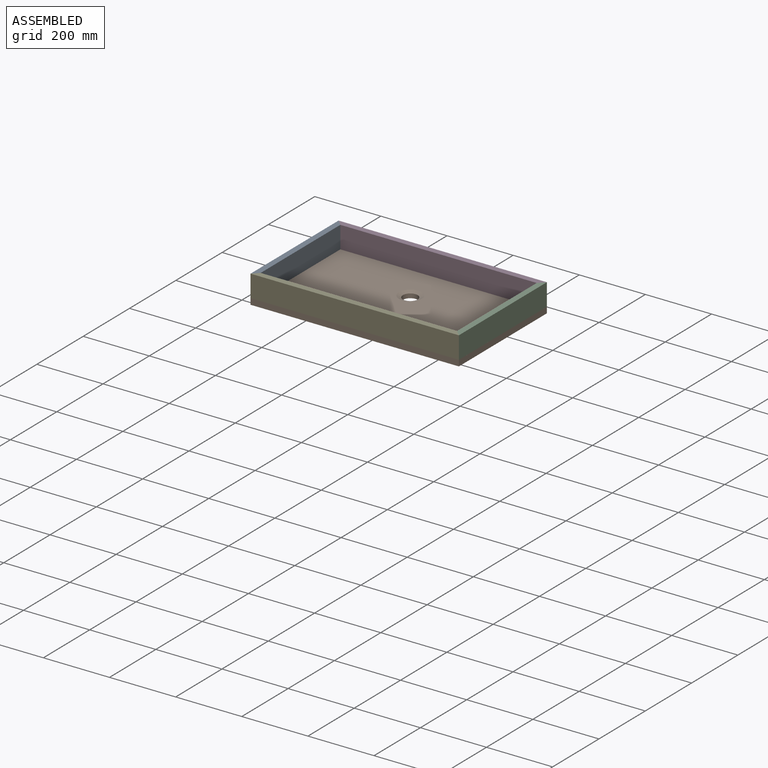
[diagram: assembled view]
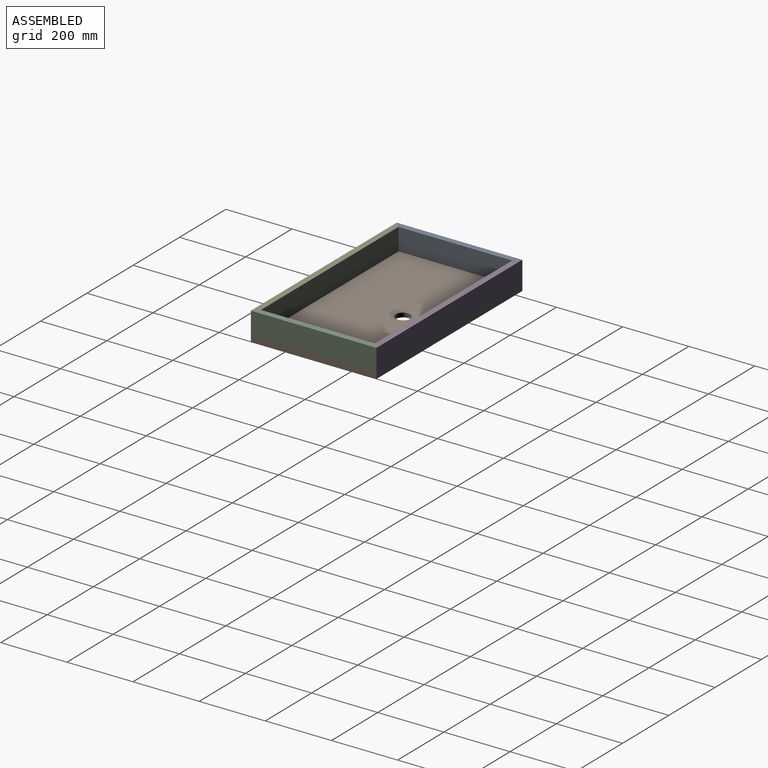
[diagram: assembled view, second angle]
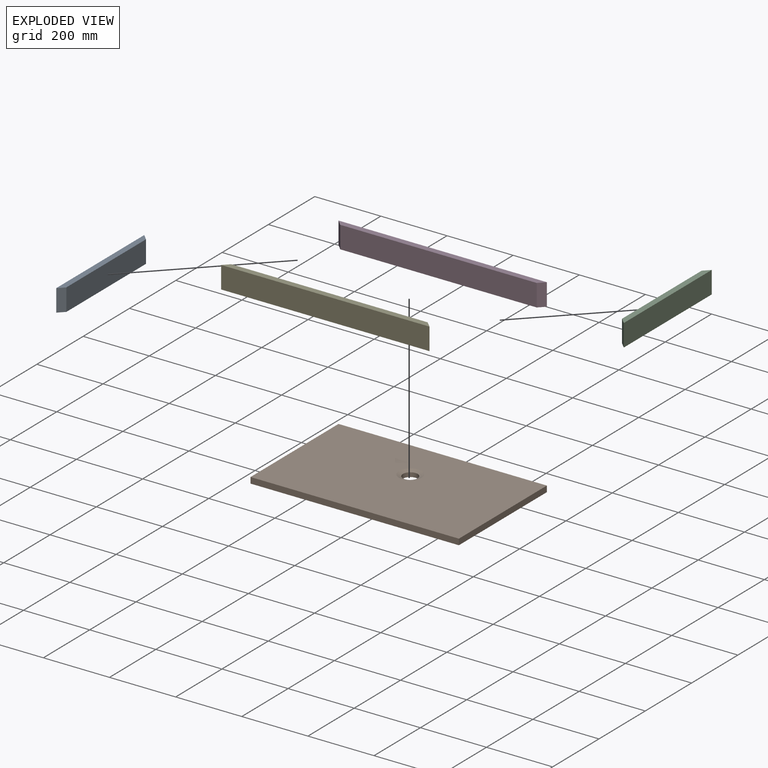
[diagram: exploded view]
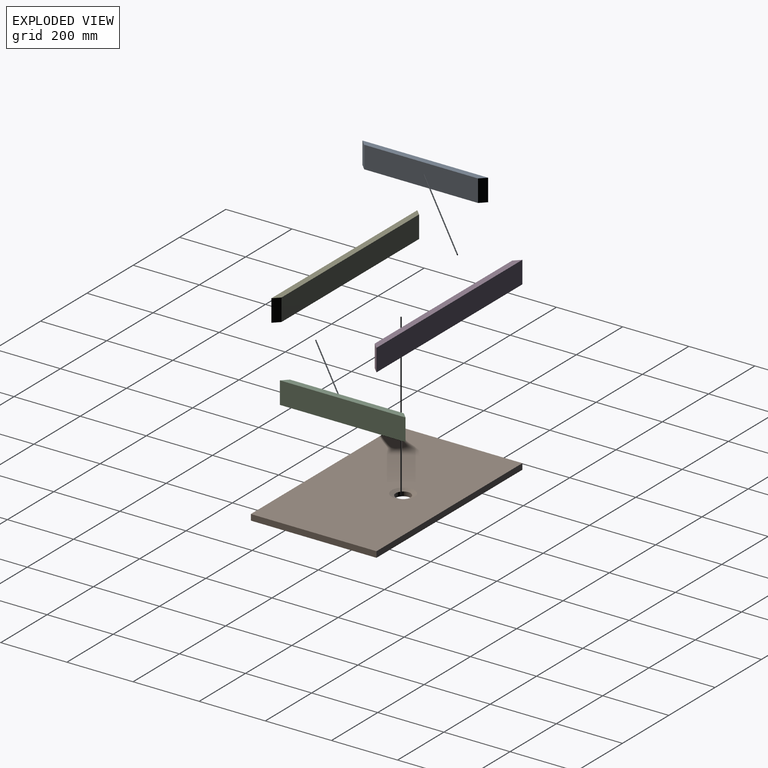
[diagram: exploded view, second angle]
ASSEMBLY  parts=5 mates=4
PART A: 6 faces, bbox 67x380x18 mm
  f0: plane 380x18mm, normal (-1,0,0), area 6516mm2, adj f2,f3,f4,f5
  f1: plane 380x18mm, normal (1,0,0), area 6516mm2, adj f2,f3,f4,f5
  f2: plane 344x67mm, normal (0,0,1), area 23048mm2, adj f0,f1,f4,f5
  f3: plane 380x67mm, normal (0,0,-1), area 25460mm2, adj f0,f1,f4,f5
  f4: plane 67x18mm, normal (0,0.71,0.71), area 1705.5mm2, adj f0,f1,f2,f3
  f5: plane 67x18mm, normal (0,-0.71,0.71), area 1705.5mm2, adj f0,f1,f2,f3
PART B: 8 faces, bbox 630x380x18 mm
  f0: plane 380x18mm, normal (1,0,0), area 6840mm2, adj f1,f3,f5,f6
  f1: plane 630x18mm, normal (0,1,0), area 11340mm2, adj f0,f2,f5,f6
  f2: plane 380x18mm, normal (-1,0,0), area 6840mm2, adj f1,f3,f5,f6
  f3: plane 630x18mm, normal (0,-1,0), area 11340mm2, adj f0,f2,f5,f6
  f4: cylinder r=22.5mm len=45mm, axis (0,0,-1), area 1837.8mm2, adj f6,f7
  f5: plane 630x380mm, normal (0,0,1), area 235645.3mm2, adj f0,f1,f2,f3,f7
  f6: plane 630x380mm, normal (0,0,-1), area 237809.6mm2, adj f0,f1,f2,f3,f4
  f7: cone r=22.5mm half-angle=67.5deg, axis (0,0,1), area 2342.6mm2, adj f4,f5
PART C: same geometry as A
PART D: 6 faces, bbox 630x67x18 mm
  f0: plane 630x18mm, normal (0,1,0), area 11016mm2, adj f2,f3,f4,f5
  f1: plane 630x18mm, normal (0,-1,0), area 11016mm2, adj f2,f3,f4,f5
  f2: plane 594x67mm, normal (0,0,1), area 39798mm2, adj f0,f1,f4,f5
  f3: plane 630x67mm, normal (0,0,-1), area 42210mm2, adj f0,f1,f4,f5
  f4: plane 67x18mm, normal (0.71,0,0.71), area 1705.5mm2, adj f0,f1,f2,f3
  f5: plane 67x18mm, normal (-0.71,0,0.71), area 1705.5mm2, adj f0,f1,f2,f3
PART E: same geometry as D
PLACE A rot(axis=(0.71,0,0.71),180deg) t=(-351.44,92.41,-470.76)mm
PLACE B t=(-36.44,101.08,16.85)mm
PLACE C rot(axis=(0,-1,0),90deg) t=(278.56,109.74,-470.76)mm
PLACE D rot(axis=(0,-0.71,0.71),180deg) t=(1.08,291.08,-410.31)mm
PLACE E rot(axis=(-1,0,0),90deg) t=(-73.96,-88.92,-410.31)mm
MATE fastened A.f4 <-> E.f5  axis (0.71,-0.71,0) through (-342.44,-79.92,68.35)mm
MATE fastened E.f0 <-> B.f5  axis (0,0,-1) through (-36.44,-88.92,34.85)mm
MATE fastened C.f5 <-> E.f4  axis (-0.71,-0.71,0) through (269.56,-79.92,68.35)mm
MATE fastened A.f5 <-> D.f4  axis (0.71,0.71,0) through (-342.44,282.08,68.35)mm
